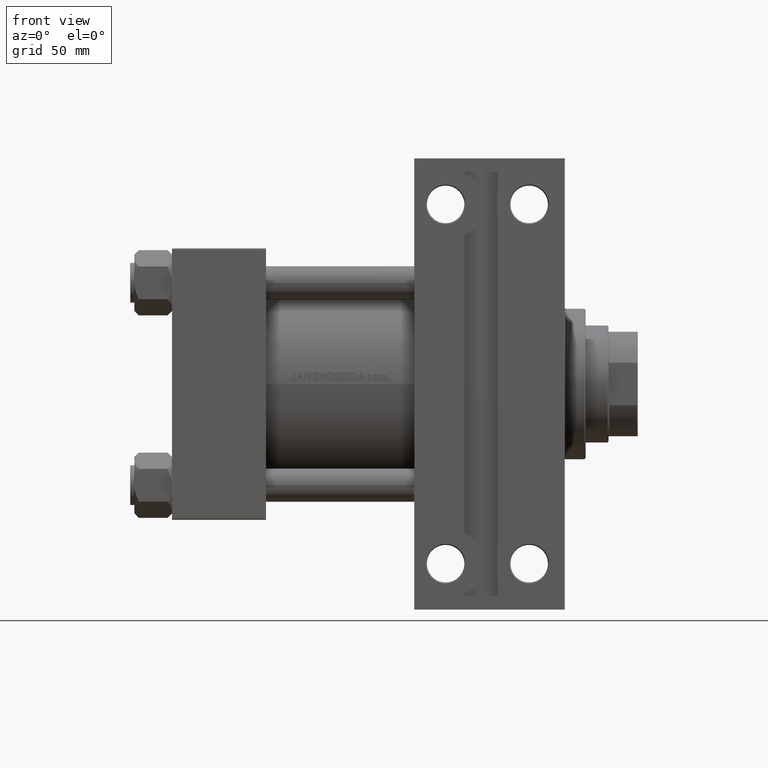
[diagram: clean part render]
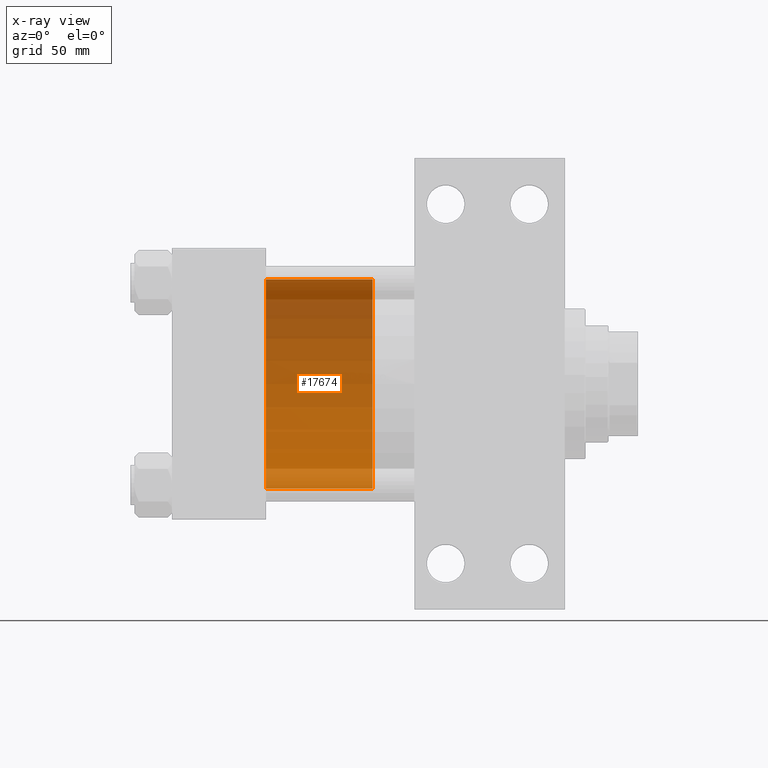
[diagram: x-ray — body ghosted, one internal face saturated and labeled with its STEP entity id]
A machine part, front view, then the same camera in x-ray: the body is ghosted and one INTERNAL B-rep face — a face not visible from any outside direction — is saturated and labeled: STEP entity #17674.
In plain terms, the highlighted cylindrical surface (partial cylindrical patch) has radius 50 mm, axis along (-1, 0, 0).
Its self-contained STEP definition (entity closure, byte-faithful):
#295 = CIRCLE ( 'NONE', #27581, 50.00000000000000000 ) ;
#808 = DIRECTION ( 'NONE',  ( 1.000000000000000000, 0.000000000000000000, 0.000000000000000000 ) ) ;
#1291 = CARTESIAN_POINT ( 'NONE',  ( 0.000000000000000000, 0.000000000000000000, 0.000000000000000000 ) ) ;
#3064 = CARTESIAN_POINT ( 'NONE',  ( 0.000000000000000000, 0.000000000000000000, 51.00000000000000000 ) ) ;
#4204 = VERTEX_POINT ( 'NONE', #15579 ) ;
#4460 = DIRECTION ( 'NONE',  ( 0.000000000000000000, 0.000000000000000000, 1.000000000000000000 ) ) ;
#4997 = CARTESIAN_POINT ( 'NONE',  ( -50.00000000000000000, 0.000000000000000000, 0.000000000000000000 ) ) ;
#5253 = CIRCLE ( 'NONE', #38770, 50.00000000000000000 ) ;
#7403 = EDGE_CURVE ( 'NONE', #17473, #4204, #39741, .T. ) ;
#8241 = FACE_OUTER_BOUND ( 'NONE', #41513, .T. ) ;
#8494 = ORIENTED_EDGE ( 'NONE', *, *, #10963, .T. ) ;
#8734 = CYLINDRICAL_SURFACE ( 'NONE', #24642, 50.00000000000000000 ) ;
#8969 = CARTESIAN_POINT ( 'NONE',  ( 0.000000000000000000, 0.000000000000000000, 51.00000000000000000 ) ) ;
#10963 = EDGE_CURVE ( 'NONE', #36580, #4204, #295, .T. ) ;
#12014 = ORIENTED_EDGE ( 'NONE', *, *, #24181, .T. ) ;
#14527 = DIRECTION ( 'NONE',  ( 1.000000000000000000, 0.000000000000000000, 0.000000000000000000 ) ) ;
#15579 = CARTESIAN_POINT ( 'NONE',  ( 50.00000000000000000, 6.123233995736766085E-15, 0.000000000000000000 ) ) ;
#17473 = VERTEX_POINT ( 'NONE', #25609 ) ;
#17674 = ADVANCED_FACE ( 'NONE', ( #8241 ), #8734, .T. ) ;
#17938 = DIRECTION ( 'NONE',  ( 0.000000000000000000, 0.000000000000000000, 1.000000000000000000 ) ) ;
#18236 = CARTESIAN_POINT ( 'NONE',  ( 50.00000000000000000, 6.123233995736766085E-15, 51.00000000000000000 ) ) ;
#20326 = VECTOR ( 'NONE', #33367, 1000.000000000000000 ) ;
#24181 = EDGE_CURVE ( 'NONE', #41372, #36580, #40870, .T. ) ;
#24642 = AXIS2_PLACEMENT_3D ( 'NONE', #8969, #34368, #45585 ) ;
#25609 = CARTESIAN_POINT ( 'NONE',  ( 50.00000000000000000, 6.123233995736766085E-15, 51.00000000000000000 ) ) ;
#27581 = AXIS2_PLACEMENT_3D ( 'NONE', #1291, #4460, #808 ) ;
#27654 = ORIENTED_EDGE ( 'NONE', *, *, #7403, .F. ) ;
#31530 = CARTESIAN_POINT ( 'NONE',  ( -50.00000000000000000, 0.000000000000000000, 51.00000000000000000 ) ) ;
#33367 = DIRECTION ( 'NONE',  ( -0.000000000000000000, -0.000000000000000000, -1.000000000000000000 ) ) ;
#33470 = EDGE_CURVE ( 'NONE', #41372, #17473, #5253, .T. ) ;
#33542 = CARTESIAN_POINT ( 'NONE',  ( -50.00000000000000000, 0.000000000000000000, 51.00000000000000000 ) ) ;
#34263 = DIRECTION ( 'NONE',  ( -0.000000000000000000, -0.000000000000000000, -1.000000000000000000 ) ) ;
#34368 = DIRECTION ( 'NONE',  ( -0.000000000000000000, -0.000000000000000000, -1.000000000000000000 ) ) ;
#34813 = ORIENTED_EDGE ( 'NONE', *, *, #33470, .F. ) ;
#36580 = VERTEX_POINT ( 'NONE', #4997 ) ;
#38770 = AXIS2_PLACEMENT_3D ( 'NONE', #3064, #17938, #14527 ) ;
#39741 = LINE ( 'NONE', #18236, #20326 ) ;
#40870 = LINE ( 'NONE', #33542, #44247 ) ;
#41372 = VERTEX_POINT ( 'NONE', #31530 ) ;
#41513 = EDGE_LOOP ( 'NONE', ( #27654, #34813, #12014, #8494 ) ) ;
#44247 = VECTOR ( 'NONE', #34263, 1000.000000000000000 ) ;
#45585 = DIRECTION ( 'NONE',  ( -1.000000000000000000, 0.000000000000000000, 0.000000000000000000 ) ) ;